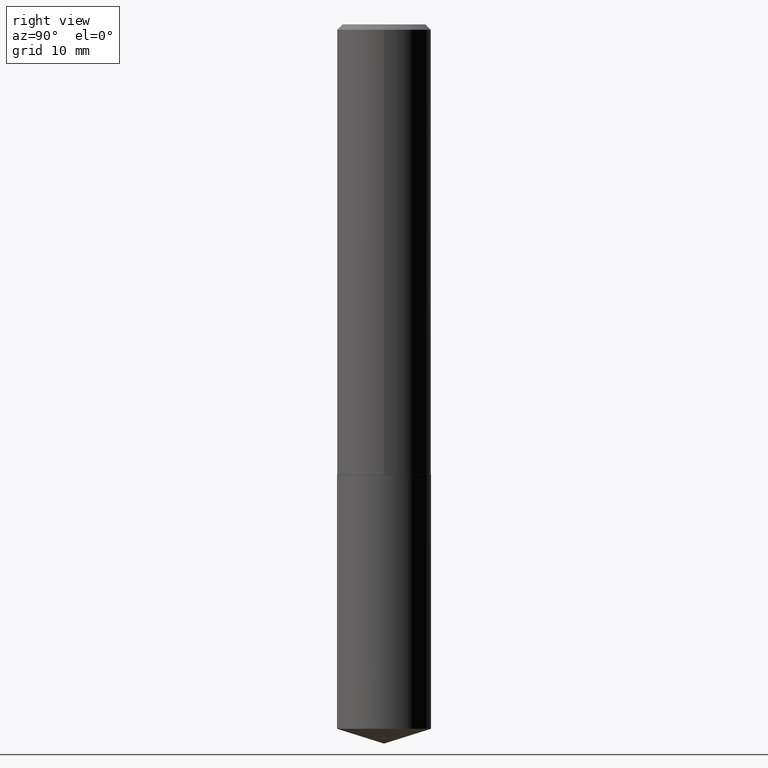
[diagram: clean part render]
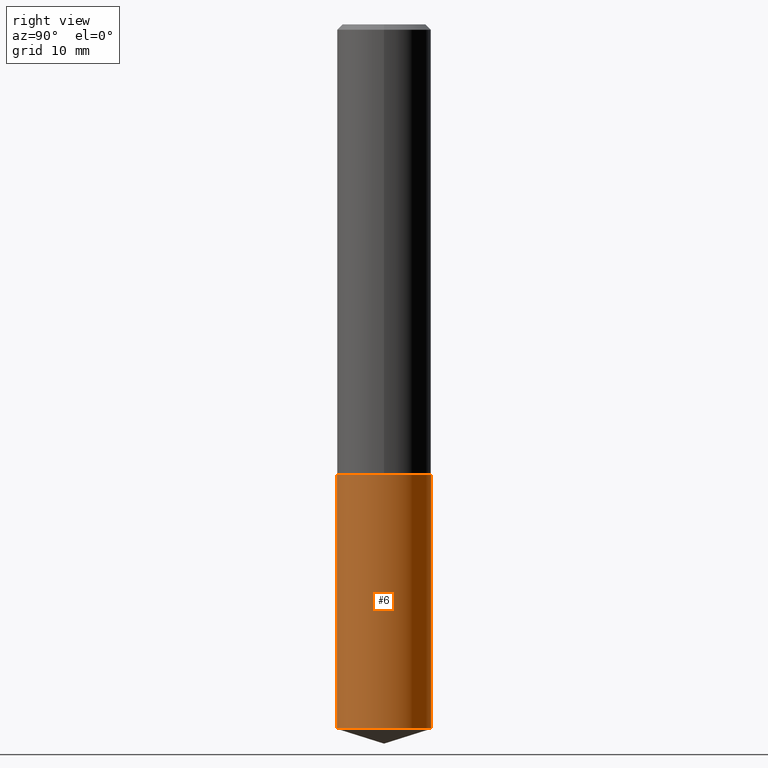
[diagram: same view with one face highlighted and labeled with its STEP entity id]
A machine part, right view. The second image highlights one B-rep face of the part: STEP entity #6.
In plain terms, the highlighted cylindrical surface (partial cylindrical patch) has radius 7.0002 mm, axis along (-0, 0, 1).
Its self-contained STEP definition (entity closure, byte-faithful):
#6 = ADVANCED_FACE ( 'NONE', ( #25 ), #212, .T. ) ;
#11 = CARTESIAN_POINT ( 'NONE',  ( 1.958255779754937169E-15, 0.2755999999999907968, -2.637800000000000811 ) ) ;
#15 = DIRECTION ( 'NONE',  ( -6.982962677686265922E-15, -1.000000000000000000, 3.964946289788480896E-15 ) ) ;
#18 = DIRECTION ( 'NONE',  ( -2.444090534757923530E-29, 3.493455101973252593E-15, 1.000000000000000000 ) ) ;
#25 = FACE_OUTER_BOUND ( 'NONE', #48, .T. ) ;
#26 = VERTEX_POINT ( 'NONE', #244 ) ;
#48 = EDGE_LOOP ( 'NONE', ( #190, #109, #54, #66 ) ) ;
#49 = AXIS2_PLACEMENT_3D ( 'NONE', #143, #18, #15 ) ;
#54 = ORIENTED_EDGE ( 'NONE', *, *, #353, .F. ) ;
#66 = ORIENTED_EDGE ( 'NONE', *, *, #171, .F. ) ;
#68 = CARTESIAN_POINT ( 'NONE',  ( 1.958255779754900487E-15, 0.2755999999999907968, -2.637800000000000811 ) ) ;
#73 = EDGE_CURVE ( 'NONE', #254, #126, #225, .T. ) ;
#76 = AXIS2_PLACEMENT_3D ( 'NONE', #142, #115, #261 ) ;
#82 = CARTESIAN_POINT ( 'NONE',  ( -1.924504513970270662E-15, -0.2756000000000092265, -2.637799999999999034 ) ) ;
#109 = ORIENTED_EDGE ( 'NONE', *, *, #73, .T. ) ;
#115 = DIRECTION ( 'NONE',  ( -2.444090534757923530E-29, 3.493455101973252593E-15, 1.000000000000000000 ) ) ;
#120 = CARTESIAN_POINT ( 'NONE',  ( -1.924504513970270662E-15, -0.2756000000000092265, -2.637799999999999034 ) ) ;
#126 = VERTEX_POINT ( 'NONE', #11 ) ;
#127 = CARTESIAN_POINT ( 'NONE',  ( 6.450657616955153231E-29, -9.209829475600448681E-15, -2.637799999999999923 ) ) ;
#136 = CARTESIAN_POINT ( 'NONE',  ( 1.958255779754937169E-15, 0.2755999999999856342, -4.125703653784954739 ) ) ;
#142 = CARTESIAN_POINT ( 'NONE',  ( 1.008722885380268887E-28, -1.440775408616014137E-14, -4.125703653784953850 ) ) ;
#143 = CARTESIAN_POINT ( 'NONE',  ( 6.450657616955153231E-29, -9.209829475600448681E-15, -2.637799999999999923 ) ) ;
#156 = DIRECTION ( 'NONE',  ( -2.444090534757923530E-29, 3.493455101973252593E-15, 1.000000000000000000 ) ) ;
#171 = EDGE_CURVE ( 'NONE', #26, #325, #284, .T. ) ;
#184 = DIRECTION ( 'NONE',  ( -6.982962677686265922E-15, -1.000000000000000000, 3.964946289788480896E-15 ) ) ;
#187 = CIRCLE ( 'NONE', #76, 0.2756000000000000116 ) ;
#190 = ORIENTED_EDGE ( 'NONE', *, *, #370, .T. ) ;
#212 = CYLINDRICAL_SURFACE ( 'NONE', #245, 0.2756000000000000116 ) ;
#225 = LINE ( 'NONE', #68, #338 ) ;
#239 = CIRCLE ( 'NONE', #49, 0.2756000000000000116 ) ;
#244 = CARTESIAN_POINT ( 'NONE',  ( -1.924504513970233980E-15, -0.2756000000000144445, -4.125703653784952074 ) ) ;
#245 = AXIS2_PLACEMENT_3D ( 'NONE', #127, #156, #184 ) ;
#254 = VERTEX_POINT ( 'NONE', #136 ) ;
#261 = DIRECTION ( 'NONE',  ( -6.982962677686265922E-15, -1.000000000000000000, 3.964946289788480896E-15 ) ) ;
#284 = LINE ( 'NONE', #82, #316 ) ;
#307 = DIRECTION ( 'NONE',  ( -2.444090534757923810E-29, 3.493455101973252593E-15, 1.000000000000000000 ) ) ;
#316 = VECTOR ( 'NONE', #350, 39.37007874015748143 ) ;
#325 = VERTEX_POINT ( 'NONE', #120 ) ;
#338 = VECTOR ( 'NONE', #307, 39.37007874015748143 ) ;
#350 = DIRECTION ( 'NONE',  ( -2.444090534757923810E-29, 3.493455101973252593E-15, 1.000000000000000000 ) ) ;
#353 = EDGE_CURVE ( 'NONE', #325, #126, #239, .T. ) ;
#370 = EDGE_CURVE ( 'NONE', #26, #254, #187, .T. ) ;